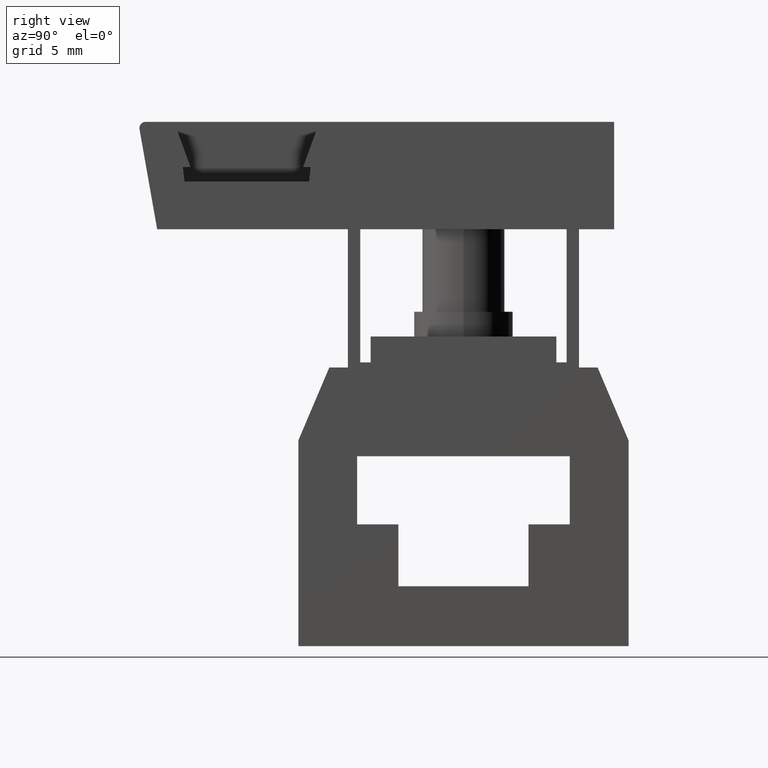
[diagram: clean part render]
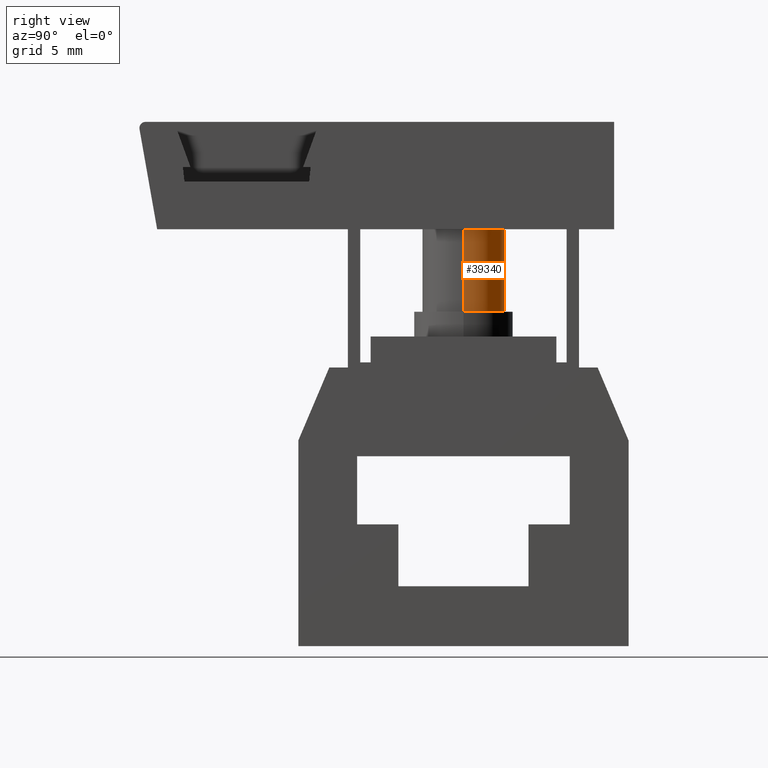
[diagram: same view with one face highlighted and labeled with its STEP entity id]
A machine part, right view. The second image highlights one B-rep face of the part: STEP entity #39340.
In plain terms, the highlighted cylindrical surface (partial cylindrical patch) has radius 2 mm, axis along (-0, -0, 1).
Its self-contained STEP definition (entity closure, byte-faithful):
#12980=CARTESIAN_POINT('',(-3.5,24.7,8.));
#12990=DIRECTION('',(0.,1.,0.));
#13000=DIRECTION('',(1.,0.,0.));
#13010=AXIS2_PLACEMENT_3D('',#12980,#12990,#13000);
#13020=CIRCLE('',#13010,2.);
#13030=CARTESIAN_POINT('',(-1.5,24.7,8.));
#13040=VERTEX_POINT('',#13030);
#13050=CARTESIAN_POINT('',(-5.5,24.7,8.));
#13060=VERTEX_POINT('',#13050);
#13070=EDGE_CURVE('',#13040,#13060,#13020,.T.);
#14010=CARTESIAN_POINT('',(-5.5,19.05,8.));
#14020=DIRECTION('',(0.,1.,0.));
#14030=VECTOR('',#14020,1.);
#14040=LINE('',#14010,#14030);
#14050=CARTESIAN_POINT('',(-5.5,20.7,8.));
#14060=VERTEX_POINT('',#14050);
#14070=EDGE_CURVE('',#14060,#13060,#14040,.T.);
#14100=CARTESIAN_POINT('',(-1.5,19.05,8.));
#14110=DIRECTION('',(0.,1.,0.));
#14120=VECTOR('',#14110,1.);
#14130=LINE('',#14100,#14120);
#14140=CARTESIAN_POINT('',(-1.5,20.7,8.));
#14150=VERTEX_POINT('',#14140);
#14160=EDGE_CURVE('',#14150,#13040,#14130,.T.);
#14180=CARTESIAN_POINT('',(-3.5,20.7,8.));
#14190=DIRECTION('',(0.,1.,0.));
#14200=DIRECTION('',(1.,0.,0.));
#14210=AXIS2_PLACEMENT_3D('',#14180,#14190,#14200);
#14220=CIRCLE('',#14210,2.);
#14400=EDGE_CURVE('',#14150,#14060,#14220,.T.);
#39230=CARTESIAN_POINT('',(-3.5,19.05,8.));
#39240=DIRECTION('',(0.,1.,0.));
#39250=DIRECTION('',(1.,0.,0.));
#39260=AXIS2_PLACEMENT_3D('',#39230,#39240,#39250);
#39270=CYLINDRICAL_SURFACE('',#39260,2.);
#39280=ORIENTED_EDGE('',*,*,#13070,.F.);
#39290=ORIENTED_EDGE('',*,*,#14070,.T.);
#39300=ORIENTED_EDGE('',*,*,#14400,.T.);
#39310=ORIENTED_EDGE('',*,*,#14160,.F.);
#39320=EDGE_LOOP('',(#39310,#39300,#39290,#39280));
#39330=FACE_OUTER_BOUND('',#39320,.T.);
#39340=ADVANCED_FACE('',(#39330),#39270,.T.);